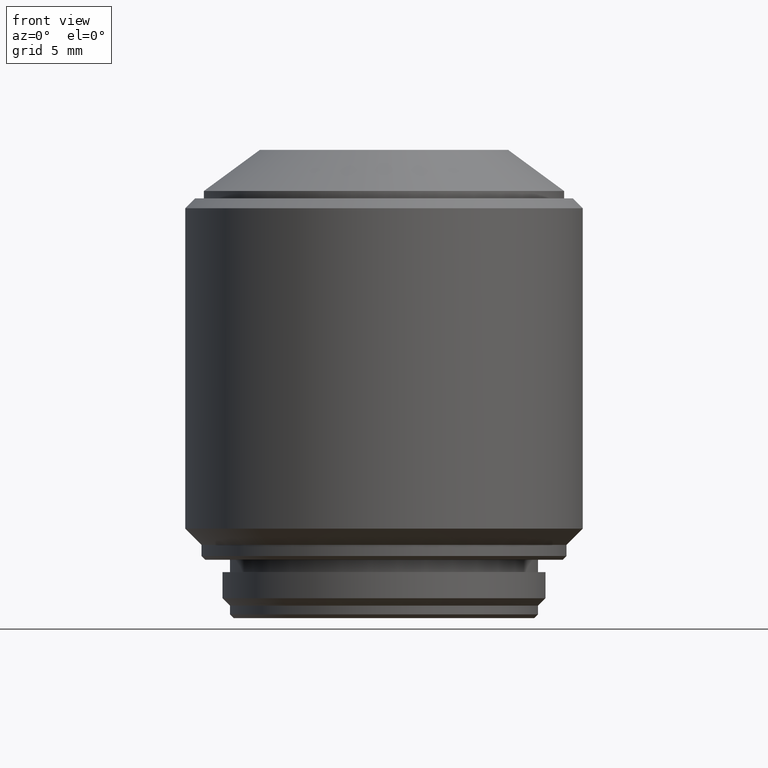
[diagram: clean part render]
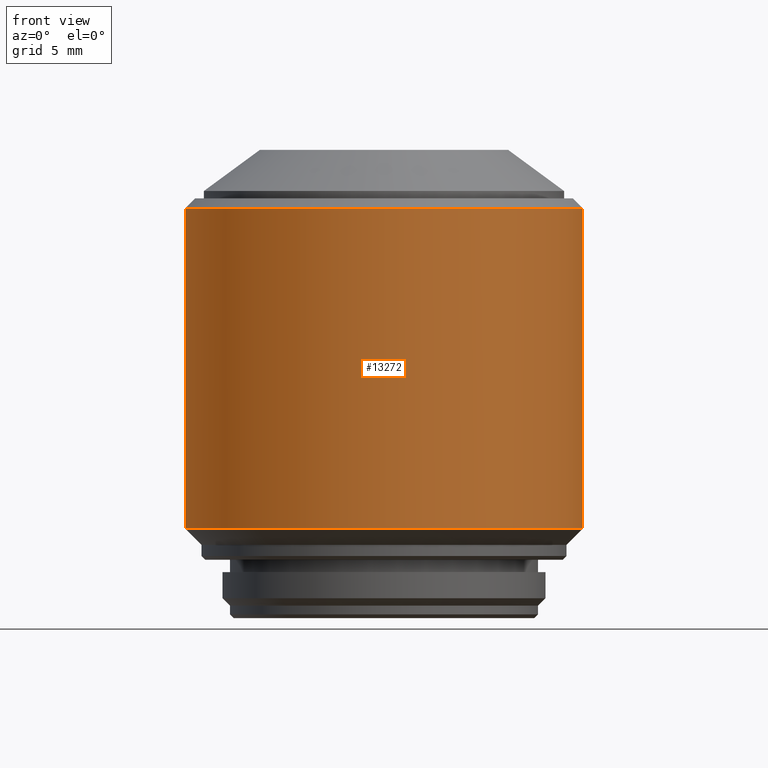
[diagram: same view with one face highlighted and labeled with its STEP entity id]
A machine part, front view. The second image highlights one B-rep face of the part: STEP entity #13272.
In plain terms, the highlighted cylindrical surface (partial cylindrical patch) has radius 16 mm, axis along (0, 0, -1).
Its self-contained STEP definition (entity closure, byte-faithful):
#632 = EDGE_CURVE ( 'NONE', #23613, #18086, #19986, .T. ) ;
#1650 = CARTESIAN_POINT ( 'NONE',  ( -15.99999999999998579, 1.959434878635763159E-15, 7.200000000000000178 ) ) ;
#2414 = VERTEX_POINT ( 'NONE', #4055 ) ;
#3220 = CARTESIAN_POINT ( 'NONE',  ( 0.000000000000000000, 0.000000000000000000, 33.00000000000000000 ) ) ;
#3278 = ORIENTED_EDGE ( 'NONE', *, *, #6578, .F. ) ;
#3416 = ORIENTED_EDGE ( 'NONE', *, *, #632, .T. ) ;
#3619 = ORIENTED_EDGE ( 'NONE', *, *, #21557, .T. ) ;
#4000 = DIRECTION ( 'NONE',  ( 0.000000000000000000, 0.000000000000000000, 1.000000000000000000 ) ) ;
#4055 = CARTESIAN_POINT ( 'NONE',  ( -15.99999999999998579, 0.000000000000000000, 33.00000000000000000 ) ) ;
#4462 = AXIS2_PLACEMENT_3D ( 'NONE', #26672, #4000, #16685 ) ;
#5509 = CIRCLE ( 'NONE', #22306, 16.00000000000000000 ) ;
#5857 = DIRECTION ( 'NONE',  ( 0.000000000000000000, 0.000000000000000000, -1.000000000000000000 ) ) ;
#6578 = EDGE_CURVE ( 'NONE', #8359, #18086, #8409, .T. ) ;
#7221 = EDGE_CURVE ( 'NONE', #2414, #23613, #8554, .T. ) ;
#7519 = DIRECTION ( 'NONE',  ( 1.000000000000000000, 0.000000000000000000, 0.000000000000000000 ) ) ;
#8359 = VERTEX_POINT ( 'NONE', #14261 ) ;
#8409 = LINE ( 'NONE', #25014, #14000 ) ;
#8554 = LINE ( 'NONE', #20700, #19633 ) ;
#9031 = DIRECTION ( 'NONE',  ( 0.000000000000000000, 0.000000000000000000, -1.000000000000000000 ) ) ;
#11938 = DIRECTION ( 'NONE',  ( -1.000000000000000000, 0.000000000000000000, 0.000000000000000000 ) ) ;
#13272 = ADVANCED_FACE ( 'NONE', ( #20043 ), #16117, .T. ) ;
#14000 = VECTOR ( 'NONE', #14486, 1000.000000000000000 ) ;
#14261 = CARTESIAN_POINT ( 'NONE',  ( 15.99999999999998579, 1.959434878635763554E-15, 33.00000000000000000 ) ) ;
#14486 = DIRECTION ( 'NONE',  ( 0.000000000000000000, 0.000000000000000000, -1.000000000000000000 ) ) ;
#14501 = AXIS2_PLACEMENT_3D ( 'NONE', #22191, #5857, #11938 ) ;
#15512 = ORIENTED_EDGE ( 'NONE', *, *, #7221, .T. ) ;
#16117 = CYLINDRICAL_SURFACE ( 'NONE', #14501, 16.00000000000000000 ) ;
#16685 = DIRECTION ( 'NONE',  ( -1.000000000000000000, 0.000000000000000000, 0.000000000000000000 ) ) ;
#18086 = VERTEX_POINT ( 'NONE', #25764 ) ;
#18820 = DIRECTION ( 'NONE',  ( 0.000000000000000000, 0.000000000000000000, -1.000000000000000000 ) ) ;
#19633 = VECTOR ( 'NONE', #18820, 1000.000000000000000 ) ;
#19986 = CIRCLE ( 'NONE', #4462, 16.00000000000000000 ) ;
#20043 = FACE_OUTER_BOUND ( 'NONE', #23750, .T. ) ;
#20700 = CARTESIAN_POINT ( 'NONE',  ( -16.00000000000000000, 0.000000000000000000, 37.69999999999999574 ) ) ;
#21557 = EDGE_CURVE ( 'NONE', #8359, #2414, #5509, .T. ) ;
#22191 = CARTESIAN_POINT ( 'NONE',  ( 0.000000000000000000, 0.000000000000000000, 37.69999999999999574 ) ) ;
#22306 = AXIS2_PLACEMENT_3D ( 'NONE', #3220, #9031, #7519 ) ;
#23613 = VERTEX_POINT ( 'NONE', #1650 ) ;
#23750 = EDGE_LOOP ( 'NONE', ( #3278, #3619, #15512, #3416 ) ) ;
#25014 = CARTESIAN_POINT ( 'NONE',  ( 16.00000000000000000, 1.959434878635765131E-15, 37.69999999999999574 ) ) ;
#25764 = CARTESIAN_POINT ( 'NONE',  ( 15.99999999999998579, 0.000000000000000000, 7.200000000000000178 ) ) ;
#26672 = CARTESIAN_POINT ( 'NONE',  ( 0.000000000000000000, 0.000000000000000000, 7.200000000000000178 ) ) ;